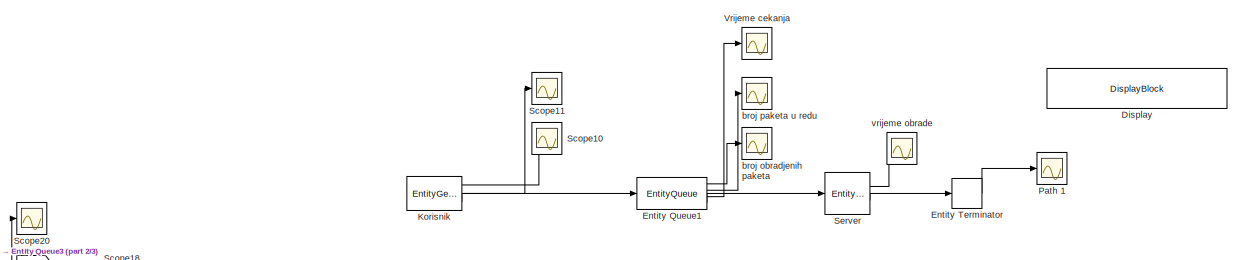
[diagram: root canvas - part 1/3, top center region]
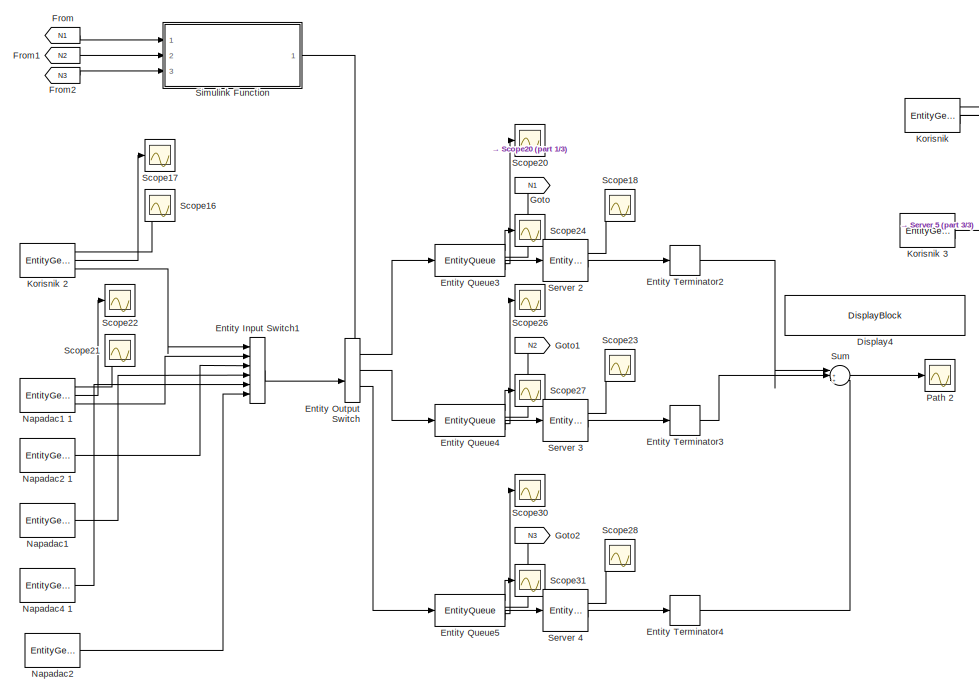
[diagram: root canvas - part 2/3, middle left region]
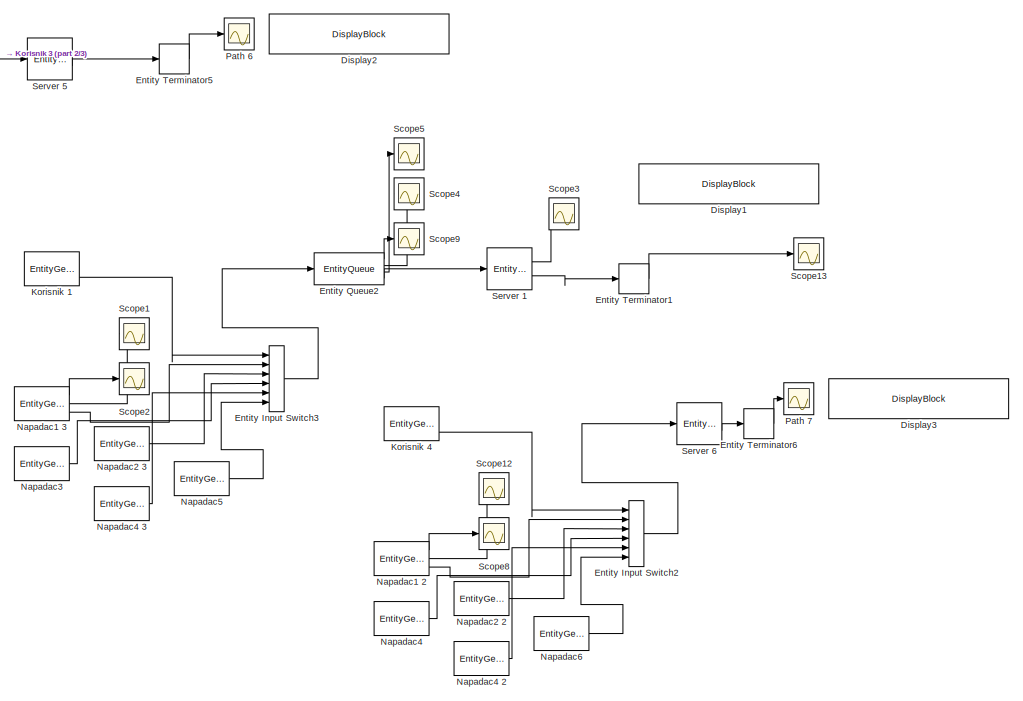
[diagram: root canvas - part 3/3, middle right region]
MODEL slx_8ecd86adb129
KIND model
CONFIG AbsTol = auto
CONFIG EnableMultiTasking = off
CONFIG FixedStep = auto
CONFIG InitFcn = global brojac_normalnih brojac_napadaca;\nbrojac_normalnih = 0;\nbrojac_napadaca = 0;\n
CONFIG MaxStep = auto
CONFIG MinStep = auto
CONFIG RelTol = 1e-3
CONFIG SampleTimeConstraint = Unconstrained
CONFIG Solver = VariableStepAuto
CONFIG SolverName = VariableStepAuto
CONFIG StartFcn = global brojac_normalnih brojac_napadaca;\nbrojac_normalnih = 0;\nbrojac_napadaca = 0;\n
CONFIG StartTime = 0.0
CONFIG StopTime = 100
BLOCK [DisplayBlock] Display
  LabelPosition = Hide
  WebBlockId = 144
BLOCK [DisplayBlock] Display1
  LabelPosition = Hide
  WebBlockId = 257
BLOCK [DisplayBlock] Display2
  LabelPosition = Hide
  WebBlockId = 149
BLOCK [DisplayBlock] Display3
  LabelPosition = Hide
  WebBlockId = 165
BLOCK [DisplayBlock] Display4
  LabelPosition = Hide
  WebBlockId = 260
BLOCK [EntityInputSwitch] Entity Input Switch1
  InputPortMap = u1,u2,u3,u4,u5,u6
  InputPortMessageModes = m,m,m,m,m,m
  NumberInputPorts = 6
  OutputPortMap = o0
  OutputPortMessageModes = m
  Ports = [6, 1]
BLOCK [EntityInputSwitch] Entity Input Switch2
  InputPortMap = u1,u2,u3,u4,u5,u6
  InputPortMessageModes = m,m,m,m,m,m
  NumberInputPorts = 6
  OutputPortMap = o0
  OutputPortMessageModes = m
  Ports = [6, 1]
BLOCK [EntityInputSwitch] Entity Input Switch3
  InputPortMap = u1,u2,u3,u4,u5,u6
  InputPortMessageModes = m,m,m,m,m,m
  NumberInputPorts = 6
  OutputPortMap = o0
  OutputPortMessageModes = m
  Ports = [6, 1]
BLOCK [EntityOutputSwitch] Entity Output Switch
  InputPortMap = u0,u1
  InputPortMessageModes = m,m
  NumberOutputPorts = 3
  OutputPortMap = o0,o1,o2
  OutputPortMessageModes = m,m,m
  Ports = [2, 3]
  SwitchAttributeName = Attribute1
  SwitchingCriterion = From control port
BLOCK [EntityQueue] Entity Queue1
  AverageWait = on
  Capacity = 100
  InputPortMap = u0
  InputPortMessageModes = m
  NumberEntitiesDeparted = on
  NumberEntitiesInBlock = on
  OutputPortMap = o0,o1,o2,o5
  OutputPortMessageModes = n,n,n,m
  Ports = [1, 4]
BLOCK [EntityQueue] Entity Queue2
  AverageWait = on
  Capacity = 500
  InputPortMap = u0
  InputPortMessageModes = m
  NumberEntitiesDeparted = on
  NumberEntitiesInBlock = on
  OutputPortMap = o0,o1,o2,o5
  OutputPortMessageModes = n,n,n,m
  Ports = [1, 4]
BLOCK [EntityQueue] Entity Queue3
  AverageWait = on
  Capacity = 500
  InputPortMap = u0
  InputPortMessageModes = m
  NumberEntitiesDeparted = on
  NumberEntitiesInBlock = on
  OutputPortMap = o0,o1,o2,o5
  OutputPortMessageModes = n,n,n,m
  Ports = [1, 4]
BLOCK [EntityQueue] Entity Queue4
  AverageWait = on
  Capacity = 500
  InputPortMap = u0
  InputPortMessageModes = m
  NumberEntitiesDeparted = on
  NumberEntitiesInBlock = on
  OutputPortMap = o0,o1,o2,o5
  OutputPortMessageModes = n,n,n,m
  Ports = [1, 4]
BLOCK [EntityQueue] Entity Queue5
  AverageWait = on
  Capacity = 500
  InputPortMap = u0
  InputPortMessageModes = m
  NumberEntitiesDeparted = on
  NumberEntitiesInBlock = on
  OutputPortMap = o0,o1,o2,o5
  OutputPortMessageModes = n,n,n,m
  Ports = [1, 4]
BLOCK [EntityTerminator] Entity Terminator
  InputPortMap = u0
  InputPortMessageModes = m
  NumberEntitiesArrived = on
  OutputPortMap = o0
  Ports = [1, 1]
BLOCK [EntityTerminator] Entity Terminator1
  InputPortMap = u0
  InputPortMessageModes = m
  NumberEntitiesArrived = on
  OutputPortMap = o0
  Ports = [1, 1]
BLOCK [EntityTerminator] Entity Terminator2
  InputPortMap = u0
  InputPortMessageModes = m
  NumberEntitiesArrived = on
  OutputPortMap = o0
  Ports = [1, 1]
BLOCK [EntityTerminator] Entity Terminator3
  InputPortMap = u0
  InputPortMessageModes = m
  NumberEntitiesArrived = on
  OutputPortMap = o0
  Ports = [1, 1]
BLOCK [EntityTerminator] Entity Terminator4
  InputPortMap = u0
  InputPortMessageModes = m
  NumberEntitiesArrived = on
  OutputPortMap = o0
  Ports = [1, 1]
BLOCK [EntityTerminator] Entity Terminator5
  InputPortMap = u0
  InputPortMessageModes = m
  NumberEntitiesArrived = on
  OutputPortMap = o0
  Ports = [1, 1]
BLOCK [EntityTerminator] Entity Terminator6
  InputPortMap = u0
  InputPortMessageModes = m
  NumberEntitiesArrived = on
  OutputPortMap = o0
  Ports = [1, 1]
BLOCK [From] From
  GotoTag = N1
BLOCK [From] From1
  GotoTag = N2
BLOCK [From] From2
  GotoTag = N3
BLOCK [Goto] Goto
  GotoTag = N1
BLOCK [Goto] Goto1
  GotoTag = N2
BLOCK [Goto] Goto2
  GotoTag = N3
BLOCK [EntityGenerator] Korisnik 
  AttributeInitialValue = 0
  AttributeName = vrijeme
  AverageIntergenerationTime = on
  DataInitialValue = 1
  EntityType = Structured
  EntityTypeName = vrijeme
  GenerateAction = persistent rngInit;\nif isempty(rngInit)\n    seed = 12345;\n    rng(seed);\n    rngInit = true;\nend\n\n% Pattern: Uniform distribution\n% m: Minimum, M: Maximum\nm = 0.1, M = 0.5;\nentity.vrijeme = m + (M - m) * rand;  <repeated x3 — deduplicated; at blocks: Korisnik, Korisnik 1, Korisnik 3>
  IntergenerationTimeAction = persistent rngInit;\nif isempty(rngInit)\n    seed = 12345;\n    rng(seed);\n    rngInit = true;\nend\n\n% Pattern: Uniform distribution\n% m: Minimum, M: Maximum\nm = 0.1, M = 1;\ndt = m + (M - m) * rand;  <repeated x3 — deduplicated; at blocks: Korisnik, Korisnik 1, Korisnik 3>
  NumberEntitiesDeparted = on
  OutputPortMap = o0,o2,o3
  OutputPortMessageModes = n,n,m
  Ports = [0, 3]
  TimeSource = MATLAB action
BLOCK [EntityGenerator] Korisnik 1
  AttributeInitialValue = 0
  AttributeName = vrijeme
  AverageIntergenerationTime = on
  DataInitialValue = 1
  EntityType = Structured
  EntityTypeName = vrijeme
  NumberEntitiesDeparted = on
  OutputPortMap = o0,o2,o3
  OutputPortMessageModes = n,n,m
  Ports = [0, 3]
  TimeSource = MATLAB action
BLOCK [EntityGenerator] Korisnik 2
  AttributeInitialValue = 0
  AttributeName = vrijeme
  AverageIntergenerationTime = on
  DataInitialValue = 1
  EntityType = Structured
  EntityTypeName = vrijeme
  GenerateAction = persistent rngInit;\nif isempty(rngInit)\n    seed = 12345;\n    rng(seed);\n    rngInit = true;\nend\ncomputeRouting();\n% Pattern: Uniform distribution\n% m: Minimum, M: Maximum\nm = 0.1, M = 0.5;\nentity.vrijeme = m + (M - m) * rand;
  IntergenerationTimeAction = persistent rngInit;\nif isempty(rngInit)\n    seed = 12345;\n    rng(seed);\n    rngInit = true;\nend\n\n% Pattern: Uniform distribution\n% m: Minimum, M: Maximum\nm = 0.1, M = 2;\ndt = m + (M - m) * rand;
  NumberEntitiesDeparted = on
  OutputPortMap = o0,o2,o3
  OutputPortMessageModes = n,n,m
  Ports = [0, 3]
  TimeSource = MATLAB action
BLOCK [EntityGenerator] Korisnik 3
  AttributeInitialValue = 0
  AttributeName = vrijeme
  AverageIntergenerationTime = on
  DataInitialValue = 1
  EntityType = Structured
  EntityTypeName = vrijeme
  NumberEntitiesDeparted = on
  OutputPortMap = o0,o2,o3
  OutputPortMessageModes = n,n,m
  Ports = [0, 3]
  TimeSource = MATLAB action
BLOCK [EntityGenerator] Korisnik 4
  AttributeInitialValue = 0
  AttributeName = vrijeme
  AverageIntergenerationTime = on
  DataInitialValue = 1
  EntityType = Structured
  EntityTypeName = vrijeme
  GenerateAction = persistent rngInit;\nif isempty(rngInit)\n    seed = 12345;\n    rng(seed);\n    rngInit = true;\nend\n\n% Pattern: Uniform distribution\n% m: Minimum, M: Maximum\nm = 0.1, M = 1;\nentity.vrijeme = m + (M - m) * rand;
  IntergenerationTimeAction = persistent rngInit;\nif isempty(rngInit)\n    seed = 12345;\n    rng(seed);\n    rngInit = true;\nend\n\n% Pattern: Uniform distribution\n% m: Minimum, M: Maximum\nm = 0.1, M = 2;\ndt = m + (M - m) * rand;
  NumberEntitiesDeparted = on
  OutputPortMap = o0,o2,o3
  OutputPortMessageModes = n,n,m
  Ports = [0, 3]
  TimeSource = MATLAB action
BLOCK [EntityGenerator] Napadac1
  AttributeInitialValue = 0
  AttributeName = vrijeme
  DataInitialValue = 1
  EntityType = Structured
  EntityTypeName = vrijeme
  GenerateAction = computeRouting();\npersistent rngInit;\nif isempty(rngInit)\n    seed = 12345;\n    rng(seed);\n    rngInit = true;\nend\n\n% Pattern: Uniform distribution\n% m: Minimum, M: Maximum\nm = 0.005, M = 0.02;\nentity.vrijeme = m + (M - m) * rand;  <repeated x4 — deduplicated; at blocks: Napadac1, Napadac2, Napadac2 1, Napadac4 1>
  IntergenerationTimeAction = persistent rngInit;\nif isempty(rngInit)\n    seed = 12345;\n    rng(seed);\n    rngInit = true;\nend\n\n% Pattern: Uniform distribution\n% m: Minimum, M: Maximum\nm = 0.005, M = 0.02;\ndt = m + (M - m) * rand;  <repeated x15 — deduplicated; at blocks: Napadac1, Napadac1 1, Napadac1 2, Napadac1 3, Napadac2, Napadac2 1, Napadac2 2, Napadac2 3, Napadac3, Napadac4, Napadac4 1, Napadac4 2, Napadac4 3, Napadac5, Napadac6>
  OutputPortMap = o3
  OutputPortMessageModes = m
  Ports = [0, 1]
  TimeSource = MATLAB action
BLOCK [EntityGenerator] Napadac1 1
  AttributeInitialValue = 0
  AttributeName = vrijeme
  AverageIntergenerationTime = on
  DataInitialValue = 1
  EntityType = Structured
  EntityTypeName = vrijeme
  GenerateAction = persistent rngInit;\nif isempty(rngInit)\n    seed = 12345;\n    rng(seed);\n    rngInit = true;\nend\ncomputeRouting();\n% Pattern: Uniform distribution\n% m: Minimum, M: Maximum\nm = 0.005, M = 0.02;\nentity.vrijeme = m + (M - m) * rand;
  NumberEntitiesDeparted = on
  OutputPortMap = o0,o2,o3
  OutputPortMessageModes = n,n,m
  Ports = [0, 3]
  TimeSource = MATLAB action
BLOCK [EntityGenerator] Napadac1 2
  AttributeInitialValue = 0
  AttributeName = vrijeme
  AverageIntergenerationTime = on
  DataInitialValue = 1
  EntityType = Structured
  EntityTypeName = vrijeme
  GenerateAction = persistent rngInit;\nif isempty(rngInit)\n    seed = 12345;\n    rng(seed);\n    rngInit = true;\nend\n\n% Pattern: Uniform distribution\n% m: Minimum, M: Maximum\nm = 0.005, M = 0.02;\nentity.vrijeme = m + (M - m) * rand;  <repeated x10 — deduplicated; at blocks: Napadac1 2, Napadac1 3, Napadac2 2, Napadac2 3, Napadac3, Napadac4, Napadac4 2, Napadac4 3, Napadac5, Napadac6>
  NumberEntitiesDeparted = on
  OutputPortMap = o0,o2,o3
  OutputPortMessageModes = n,n,m
  Ports = [0, 3]
  TimeSource = MATLAB action
BLOCK [EntityGenerator] Napadac1 3
  AttributeInitialValue = 0
  AttributeName = vrijeme
  AverageIntergenerationTime = on
  DataInitialValue = 1
  EntityType = Structured
  EntityTypeName = vrijeme
  NumberEntitiesDeparted = on
  OutputPortMap = o0,o2,o3
  OutputPortMessageModes = n,n,m
  Ports = [0, 3]
  TimeSource = MATLAB action
BLOCK [EntityGenerator] Napadac2
  AttributeInitialValue = 0
  AttributeName = vrijeme
  DataInitialValue = 1
  EntityType = Structured
  EntityTypeName = vrijeme
  OutputPortMap = o3
  OutputPortMessageModes = m
  Ports = [0, 1]
  TimeSource = MATLAB action
BLOCK [EntityGenerator] Napadac2 1
  AttributeInitialValue = 0
  AttributeName = vrijeme
  DataInitialValue = 1
  EntityType = Structured
  EntityTypeName = vrijeme
  OutputPortMap = o3
  OutputPortMessageModes = m
  Ports = [0, 1]
  TimeSource = MATLAB action
BLOCK [EntityGenerator] Napadac2 2
  AttributeInitialValue = 0
  AttributeName = vrijeme
  DataInitialValue = 1
  EntityType = Structured
  EntityTypeName = vrijeme
  OutputPortMap = o3
  OutputPortMessageModes = m
  Ports = [0, 1]
  TimeSource = MATLAB action
BLOCK [EntityGenerator] Napadac2 3
  AttributeInitialValue = 0
  AttributeName = vrijeme
  DataInitialValue = 1
  EntityType = Structured
  EntityTypeName = vrijeme
  OutputPortMap = o3
  OutputPortMessageModes = m
  Ports = [0, 1]
  TimeSource = MATLAB action
BLOCK [EntityGenerator] Napadac3
  AttributeInitialValue = 0
  AttributeName = vrijeme
  DataInitialValue = 1
  EntityType = Structured
  EntityTypeName = vrijeme
  OutputPortMap = o3
  OutputPortMessageModes = m
  Ports = [0, 1]
  TimeSource = MATLAB action
BLOCK [EntityGenerator] Napadac4
  AttributeInitialValue = 0
  AttributeName = vrijeme
  DataInitialValue = 1
  EntityType = Structured
  EntityTypeName = vrijeme
  OutputPortMap = o3
  OutputPortMessageModes = m
  Ports = [0, 1]
  TimeSource = MATLAB action
BLOCK [EntityGenerator] Napadac4 1
  AttributeInitialValue = 0
  AttributeName = vrijeme
  DataInitialValue = 1
  EntityType = Structured
  EntityTypeName = vrijeme
  OutputPortMap = o3
  OutputPortMessageModes = m
  Ports = [0, 1]
  TimeSource = MATLAB action
BLOCK [EntityGenerator] Napadac4 2
  AttributeInitialValue = 0
  AttributeName = vrijeme
  DataInitialValue = 1
  EntityType = Structured
  EntityTypeName = vrijeme
  OutputPortMap = o3
  OutputPortMessageModes = m
  Ports = [0, 1]
  TimeSource = MATLAB action
BLOCK [EntityGenerator] Napadac4 3
  AttributeInitialValue = 0
  AttributeName = vrijeme
  DataInitialValue = 1
  EntityType = Structured
  EntityTypeName = vrijeme
  OutputPortMap = o3
  OutputPortMessageModes = m
  Ports = [0, 1]
  TimeSource = MATLAB action
BLOCK [EntityGenerator] Napadac5
  AttributeInitialValue = 0
  AttributeName = vrijeme
  DataInitialValue = 1
  EntityType = Structured
  EntityTypeName = vrijeme
  OutputPortMap = o3
  OutputPortMessageModes = m
  Ports = [0, 1]
  TimeSource = MATLAB action
BLOCK [EntityGenerator] Napadac6
  AttributeInitialValue = 0
  AttributeName = vrijeme
  DataInitialValue = 1
  EntityType = Structured
  EntityTypeName = vrijeme
  OutputPortMap = o3
  OutputPortMessageModes = m
  Ports = [0, 1]
  TimeSource = MATLAB action
BLOCK [Scope] Path 1
  Floating = off
  NumInputPorts = 1
  Ports = [1]
  ScopeSpecificationString = Simulink.scopes.TimeScopeBlockCfg('CurrentConfiguration', extmgr.ConfigurationSet(extmgr.Configuration('Core','General UI',true),extmgr.Configuration('Core','Source UI',true),extmgr.Configuration('Sources','WiredSimulink',true,'DataLoggingLimitDataPoints',true,'DataLoggingSaveFormat','Array','DataLoggingDecimation','1','DataLoggingDecimateData',true,'DataLoggingVariableName','ScopeData1'),extmgr.C...<+1640ch>
BLOCK [Scope] Path 2
  Floating = off
  NumInputPorts = 1
  Ports = [1]
  ScopeSpecificationString = Simulink.scopes.TimeScopeBlockCfg('CurrentConfiguration', extmgr.ConfigurationSet(extmgr.Configuration('Core','General UI',true),extmgr.Configuration('Core','Source UI',true),extmgr.Configuration('Sources','WiredSimulink',true,'DataLoggingLimitDataPoints',true,'DataLoggingSaveFormat','Array','DataLoggingDecimation','1','DataLoggingDecimateData',true,'DataLoggingVariableName','ScopeData1'),extmgr.C...<+1648ch>
BLOCK [Scope] Path 6
  Floating = off
  NumInputPorts = 1
  Ports = [1]
  ScopeSpecificationString = Simulink.scopes.TimeScopeBlockCfg('CurrentConfiguration', extmgr.ConfigurationSet(extmgr.Configuration('Core','General UI',true),extmgr.Configuration('Core','Source UI',true),extmgr.Configuration('Sources','WiredSimulink',true,'DataLoggingLimitDataPoints',true,'DataLoggingSaveFormat','Array','DataLoggingDecimation','1','DataLoggingDecimateData',true,'DataLoggingVariableName','ScopeData1'),extmgr.C...<+1682ch>
BLOCK [Scope] Path 7
  Floating = off
  NumInputPorts = 1
  Ports = [1]
  ScopeSpecificationString = Simulink.scopes.TimeScopeBlockCfg('CurrentConfiguration', extmgr.ConfigurationSet(extmgr.Configuration('Core','General UI',true),extmgr.Configuration('Core','Source UI',true),extmgr.Configuration('Sources','WiredSimulink',true,'DataLoggingLimitDataPoints',true,'DataLoggingSaveFormat','Array','DataLoggingDecimation','1','DataLoggingDecimateData',true,'DataLoggingVariableName','ScopeData4'),extmgr.C...<+1687ch>
BLOCK [Scope] Scope1
  Floating = off
  NumInputPorts = 1
  Ports = [1]
  ScopeSpecificationString = Simulink.scopes.TimeScopeBlockCfg('CurrentConfiguration', extmgr.ConfigurationSet(extmgr.Configuration('Core','General UI',true),extmgr.Configuration('Core','Source UI',true),extmgr.Configuration('Sources','WiredSimulink',true,'DataLoggingVariableName','ScopeData2'),extmgr.Configuration('Visuals','Time Domain',true,'SerializedDisplays',{struct('MinYLimReal','-0.02999','MaxYLimReal','0.26988','YLab...<+1529ch>
BLOCK [Scope] Scope10
  Floating = off
  NumInputPorts = 1
  Ports = [1]
  ScopeSpecificationString = Simulink.scopes.TimeScopeBlockCfg('CurrentConfiguration', extmgr.ConfigurationSet(extmgr.Configuration('Core','General UI',true),extmgr.Configuration('Core','Source UI',true),extmgr.Configuration('Sources','WiredSimulink',true,'DataLoggingVariableName','ScopeData6'),extmgr.Configuration('Visuals','Time Domain',true,'SerializedDisplays',{struct('MinYLimReal','-21.25','MaxYLimReal','201.25','YLabelR...<+1507ch>
BLOCK [Scope] Scope11
  Floating = off
  NumInputPorts = 1
  Ports = [1]
  ScopeSpecificationString = Simulink.scopes.TimeScopeBlockCfg('CurrentConfiguration', extmgr.ConfigurationSet(extmgr.Configuration('Core','General UI',true),extmgr.Configuration('Core','Source UI',true),extmgr.Configuration('Sources','WiredSimulink',true,'DataLoggingVariableName','ScopeData9'),extmgr.Configuration('Visuals','Time Domain',true,'SerializedDisplays',{struct('MinYLimReal','-0.08093','MaxYLimReal','0.72835','YLab...<+1529ch>
BLOCK [Scope] Scope12
  Floating = off
  NumInputPorts = 1
  Ports = [1]
  ScopeSpecificationString = Simulink.scopes.TimeScopeBlockCfg('CurrentConfiguration', extmgr.ConfigurationSet(extmgr.Configuration('Core','General UI',true),extmgr.Configuration('Core','Source UI',true),extmgr.Configuration('Sources','WiredSimulink',true,'DataLoggingVariableName','ScopeData2'),extmgr.Configuration('Visuals','Time Domain',true,'SerializedDisplays',{struct('MinYLimReal','-0.02999','MaxYLimReal','0.26988','YLab...<+1529ch>
BLOCK [Scope] Scope13
  Floating = off
  NumInputPorts = 1
  Ports = [1]
  ScopeSpecificationString = Simulink.scopes.TimeScopeBlockCfg('CurrentConfiguration', extmgr.ConfigurationSet(extmgr.Configuration('Core','General UI',true),extmgr.Configuration('Core','Source UI',true),extmgr.Configuration('Sources','WiredSimulink',true,'DataLoggingVariableName','ScopeData1'),extmgr.Configuration('Visuals','Time Domain',true,'SerializedDisplays',{struct('MinYLimReal','-3485.75','MaxYLimReal','31381.75','YLa...<+1556ch>
BLOCK [Scope] Scope16
  Floating = off
  NumInputPorts = 1
  Ports = [1]
  ScopeSpecificationString = Simulink.scopes.TimeScopeBlockCfg('CurrentConfiguration', extmgr.ConfigurationSet(extmgr.Configuration('Core','General UI',true),extmgr.Configuration('Core','Source UI',true),extmgr.Configuration('Sources','WiredSimulink',true,'DataLoggingVariableName','ScopeData18'),extmgr.Configuration('Visuals','Time Domain',true,'SerializedDisplays',{struct('MinYLimReal','-222.75','MaxYLimReal','2014.75','YLab...<+1517ch>
BLOCK [Scope] Scope17
  Floating = off
  NumInputPorts = 1
  Ports = [1]
  ScopeSpecificationString = Simulink.scopes.TimeScopeBlockCfg('CurrentConfiguration', extmgr.ConfigurationSet(extmgr.Configuration('Core','General UI',true),extmgr.Configuration('Core','Source UI',true),extmgr.Configuration('Sources','WiredSimulink',true,'DataLoggingVariableName','ScopeData19'),extmgr.Configuration('Visuals','Time Domain',true,'SerializedDisplays',{struct('MinYLimReal','-0.02999','MaxYLimReal','0.26988','YLa...<+1531ch>
BLOCK [Scope] Scope18
  Floating = off
  NumInputPorts = 1
  Ports = [1]
  ScopeSpecificationString = Simulink.scopes.TimeScopeBlockCfg('CurrentConfiguration', extmgr.ConfigurationSet(extmgr.Configuration('Core','General UI',true),extmgr.Configuration('Core','Source UI',true),extmgr.Configuration('Sources','WiredSimulink',true,'DataLoggingVariableName','ScopeData20'),extmgr.Configuration('Visuals','Time Domain',true,'SerializedDisplays',{struct('MinYLimReal','0.4375','MaxYLimReal','1.0625','YLabel...<+1519ch>
BLOCK [Scope] Scope2
  Floating = off
  NumInputPorts = 1
  Ports = [1]
  ScopeSpecificationString = Simulink.scopes.TimeScopeBlockCfg('CurrentConfiguration', extmgr.ConfigurationSet(extmgr.Configuration('Core','General UI',true),extmgr.Configuration('Core','Source UI',true),extmgr.Configuration('Sources','WiredSimulink',true,'DataLoggingVariableName','ScopeData3'),extmgr.Configuration('Visuals','Time Domain',true,'SerializedDisplays',{struct('MinYLimReal','-998.00000','MaxYLimReal','8992.00000',...<+1533ch>
BLOCK [Scope] Scope20
  Floating = off
  NumInputPorts = 1
  Ports = [1]
  ScopeSpecificationString = Simulink.scopes.TimeScopeBlockCfg('CurrentConfiguration', extmgr.ConfigurationSet(extmgr.Configuration('Core','General UI',true),extmgr.Configuration('Core','Source UI',true),extmgr.Configuration('Sources','WiredSimulink',true,'DataLoggingVariableName','ScopeData22'),extmgr.Configuration('Visuals','Time Domain',true,'SerializedDisplays',{struct('MinYLimReal','-5.03012','MaxYLimReal','45.27108','YL...<+1538ch>
BLOCK [Scope] Scope21
  Floating = off
  NumInputPorts = 1
  Ports = [1]
  ScopeSpecificationString = Simulink.scopes.TimeScopeBlockCfg('CurrentConfiguration', extmgr.ConfigurationSet(extmgr.Configuration('Core','General UI',true),extmgr.Configuration('Core','Source UI',true),extmgr.Configuration('Sources','WiredSimulink',true,'DataLoggingVariableName','ScopeData23'),extmgr.Configuration('Visuals','Time Domain',true,'SerializedDisplays',{struct('MinYLimReal','-998.00000','MaxYLimReal','8992.00000'...<+1534ch>
BLOCK [Scope] Scope22
  Floating = off
  NumInputPorts = 1
  Ports = [1]
  ScopeSpecificationString = Simulink.scopes.TimeScopeBlockCfg('CurrentConfiguration', extmgr.ConfigurationSet(extmgr.Configuration('Core','General UI',true),extmgr.Configuration('Core','Source UI',true),extmgr.Configuration('Sources','WiredSimulink',true,'DataLoggingVariableName','ScopeData24'),extmgr.Configuration('Visuals','Time Domain',true,'SerializedDisplays',{struct('MinYLimReal','-0.02999','MaxYLimReal','0.26988','YLa...<+1530ch>
BLOCK [Scope] Scope23
  Floating = off
  NumInputPorts = 1
  Ports = [1]
  ScopeSpecificationString = Simulink.scopes.TimeScopeBlockCfg('CurrentConfiguration', extmgr.ConfigurationSet(extmgr.Configuration('Core','General UI',true),extmgr.Configuration('Core','Source UI',true),extmgr.Configuration('Sources','WiredSimulink',true,'DataLoggingVariableName','ScopeData27'),extmgr.Configuration('Visuals','Time Domain',true,'SerializedDisplays',{struct('MinYLimReal','0.4375','MaxYLimReal','1.0625','YLabel...<+1519ch>
BLOCK [Scope] Scope24
  Floating = off
  NumInputPorts = 1
  Ports = [1]
  ScopeSpecificationString = Simulink.scopes.TimeScopeBlockCfg('CurrentConfiguration', extmgr.ConfigurationSet(extmgr.Configuration('Core','General UI',true),extmgr.Configuration('Core','Source UI',true),extmgr.Configuration('Sources','WiredSimulink',true,'DataLoggingVariableName','ScopeData26'),extmgr.Configuration('Visuals','Time Domain',true,'SerializedDisplays',{struct('MinYLimReal','-541.5','MaxYLimReal','4883.5','YLabel...<+1528ch>
BLOCK [Scope] Scope26
  Floating = off
  NumInputPorts = 1
  Ports = [1]
  ScopeSpecificationString = Simulink.scopes.TimeScopeBlockCfg('CurrentConfiguration', extmgr.ConfigurationSet(extmgr.Configuration('Core','General UI',true),extmgr.Configuration('Core','Source UI',true),extmgr.Configuration('Sources','WiredSimulink',true,'DataLoggingVariableName','ScopeData29'),extmgr.Configuration('Visuals','Time Domain',true,'SerializedDisplays',{struct('MinYLimReal','-5.03012','MaxYLimReal','45.27108','YL...<+1538ch>
BLOCK [Scope] Scope27
  Floating = off
  NumInputPorts = 1
  Ports = [1]
  ScopeSpecificationString = Simulink.scopes.TimeScopeBlockCfg('CurrentConfiguration', extmgr.ConfigurationSet(extmgr.Configuration('Core','General UI',true),extmgr.Configuration('Core','Source UI',true),extmgr.Configuration('Sources','WiredSimulink',true,'DataLoggingVariableName','ScopeData30'),extmgr.Configuration('Visuals','Time Domain',true,'SerializedDisplays',{struct('MinYLimReal','-1020.125','MaxYLimReal','9191.125','Y...<+1544ch>
BLOCK [Scope] Scope28
  Floating = off
  NumInputPorts = 1
  Ports = [1]
  ScopeSpecificationString = Simulink.scopes.TimeScopeBlockCfg('CurrentConfiguration', extmgr.ConfigurationSet(extmgr.Configuration('Core','General UI',true),extmgr.Configuration('Core','Source UI',true),extmgr.Configuration('Sources','WiredSimulink',true,'DataLoggingVariableName','ScopeData32'),extmgr.Configuration('Visuals','Time Domain',true,'SerializedDisplays',{struct('MinYLimReal','0.4375','MaxYLimReal','1.0625','YLabel...<+1519ch>
BLOCK [Scope] Scope3
  Floating = off
  NumInputPorts = 1
  Ports = [1]
  ScopeSpecificationString = Simulink.scopes.TimeScopeBlockCfg('CurrentConfiguration', extmgr.ConfigurationSet(extmgr.Configuration('Core','General UI',true),extmgr.Configuration('Core','Source UI',true),extmgr.Configuration('Sources','WiredSimulink',true,'DataLoggingVariableName','ScopeData4'),extmgr.Configuration('Visuals','Time Domain',true,'SerializedDisplays',{struct('MinYLimReal','0.4375','MaxYLimReal','1.0625','YLabelR...<+1518ch>
BLOCK [Scope] Scope30
  Floating = off
  NumInputPorts = 1
  Ports = [1]
  ScopeSpecificationString = Simulink.scopes.TimeScopeBlockCfg('CurrentConfiguration', extmgr.ConfigurationSet(extmgr.Configuration('Core','General UI',true),extmgr.Configuration('Core','Source UI',true),extmgr.Configuration('Sources','WiredSimulink',true,'DataLoggingVariableName','ScopeData34'),extmgr.Configuration('Visuals','Time Domain',true,'SerializedDisplays',{struct('MinYLimReal','-5.03012','MaxYLimReal','45.27108','YL...<+1538ch>
BLOCK [Scope] Scope31
  Floating = off
  NumInputPorts = 1
  Ports = [1]
  ScopeSpecificationString = Simulink.scopes.TimeScopeBlockCfg('CurrentConfiguration', extmgr.ConfigurationSet(extmgr.Configuration('Core','General UI',true),extmgr.Configuration('Core','Source UI',true),extmgr.Configuration('Sources','WiredSimulink',true,'DataLoggingVariableName','ScopeData35'),extmgr.Configuration('Visuals','Time Domain',true,'SerializedDisplays',{struct('MinYLimReal','-1020.125','MaxYLimReal','9191.125','Y...<+1544ch>
BLOCK [Scope] Scope4
  Floating = off
  NumInputPorts = 1
  Ports = [1]
  ScopeSpecificationString = Simulink.scopes.TimeScopeBlockCfg('CurrentConfiguration', extmgr.ConfigurationSet(extmgr.Configuration('Core','General UI',true),extmgr.Configuration('Core','Source UI',true),extmgr.Configuration('Sources','WiredSimulink',true,'DataLoggingVariableName','ScopeData5'),extmgr.Configuration('Visuals','Time Domain',true,'SerializedDisplays',{struct('MinYLimReal','-61.375','MaxYLimReal','562.375','YLabe...<+1531ch>
BLOCK [Scope] Scope5
  Floating = off
  NumInputPorts = 1
  Ports = [1]
  ScopeSpecificationString = Simulink.scopes.TimeScopeBlockCfg('CurrentConfiguration', extmgr.ConfigurationSet(extmgr.Configuration('Core','General UI',true),extmgr.Configuration('Core','Source UI',true),extmgr.Configuration('Sources','WiredSimulink',true,'DataLoggingVariableName','ScopeData7'),extmgr.Configuration('Visuals','Time Domain',true,'SerializedDisplays',{struct('MinYLimReal','-0.21564','MaxYLimReal','1.94078','YLab...<+1533ch>
BLOCK [Scope] Scope8
  Floating = off
  NumInputPorts = 1
  Ports = [1]
  ScopeSpecificationString = Simulink.scopes.TimeScopeBlockCfg('CurrentConfiguration', extmgr.ConfigurationSet(extmgr.Configuration('Core','General UI',true),extmgr.Configuration('Core','Source UI',true),extmgr.Configuration('Sources','WiredSimulink',true,'DataLoggingVariableName','ScopeData3'),extmgr.Configuration('Visuals','Time Domain',true,'SerializedDisplays',{struct('MinYLimReal','-998.00000','MaxYLimReal','8992.00000',...<+1533ch>
BLOCK [Scope] Scope9
  Floating = off
  NumInputPorts = 1
  Ports = [1]
  ScopeSpecificationString = Simulink.scopes.TimeScopeBlockCfg('CurrentConfiguration', extmgr.ConfigurationSet(extmgr.Configuration('Core','General UI',true),extmgr.Configuration('Core','Source UI',true),extmgr.Configuration('Sources','WiredSimulink',true,'DataLoggingVariableName','ScopeData15'),extmgr.Configuration('Visuals','Time Domain',true,'SerializedDisplays',{struct('MinYLimReal','-1020.125','MaxYLimReal','9191.125','Y...<+1544ch>
BLOCK [EntityServer] Server 
  Capacity = 2
  InputPortMap = u2
  InputPortMessageModes = m
  OutputPortMap = o5,o9
  OutputPortMessageModes = n,m
  Ports = [1, 2]
  ServiceTimeAttributeName = vrijeme
  ServiceTimeSource = Attribute
  Utilization = on
BLOCK [EntityServer] Server 1
  Capacity = 4
  InputPortMap = u2
  InputPortMessageModes = m
  OutputPortMap = o5,o9
  OutputPortMessageModes = n,m
  Ports = [1, 2]
  ServiceTimeAttributeName = vrijeme
  ServiceTimeSource = Attribute
  Utilization = on
BLOCK [EntityServer] Server 2
  Capacity = 4
  InputPortMap = u2
  InputPortMessageModes = m
  OutputPortMap = o5,o9
  OutputPortMessageModes = n,m
  Ports = [1, 2]
  ServiceTimeAttributeName = vrijeme
  ServiceTimeSource = Attribute
  Utilization = on
BLOCK [EntityServer] Server 3
  Capacity = 4
  InputPortMap = u2
  InputPortMessageModes = m
  OutputPortMap = o5,o9
  OutputPortMessageModes = n,m
  Ports = [1, 2]
  ServiceTimeAttributeName = vrijeme
  ServiceTimeSource = Attribute
  Utilization = on
BLOCK [EntityServer] Server 4
  Capacity = 4
  InputPortMap = u2
  InputPortMessageModes = m
  OutputPortMap = o5,o9
  OutputPortMessageModes = n,m
  Ports = [1, 2]
  ServiceTimeAttributeName = vrijeme
  ServiceTimeSource = Attribute
  Utilization = on
BLOCK [EntityServer] Server 5
  Capacity = inf
  InputPortMap = u2
  InputPortMessageModes = m
  OutputPortMap = o5,o9
  OutputPortMessageModes = n,m
  Ports = [1, 2]
  ServiceTimeAttributeName = vrijeme
  ServiceTimeSource = Attribute
  Utilization = on
BLOCK [EntityServer] Server 6
  Capacity = inf
  InputPortMap = u2
  InputPortMessageModes = m
  OutputPortMap = o5,o9
  OutputPortMessageModes = n,m
  Ports = [1, 2]
  ServiceTimeAttributeName = vrijeme
  ServiceTimeSource = Attribute
  Utilization = on
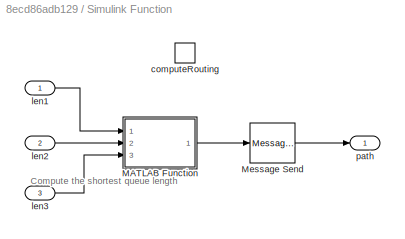
BLOCK [SubSystem] Simulink Function
  Ports = [3, 1, 0, 1]
  RequestExecContextInheritance = off
  TreatAsAtomicUnit = on
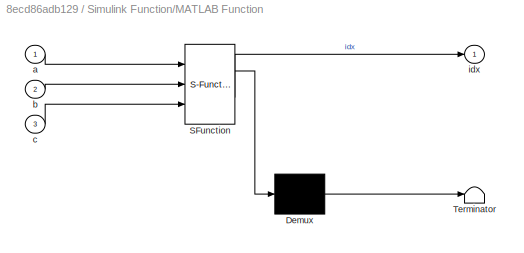
BLOCK [SubSystem] Simulink Function/MATLAB Function
  ErrorFcn = Stateflow.Translate.translate
  PermitHierarchicalResolution = ExplicitOnly
  Ports = [3, 1]
  RequestExecContextInheritance = off
  SFBlockType = MATLAB Function
  TreatAsAtomicUnit = on
BLOCK [Demux] Simulink Function/MATLAB Function/ Demux 
  Outputs = 1
  Ports = [1, 1]
BLOCK [S-Function] Simulink Function/MATLAB Function/ SFunction 
  EnableBusSupport = on
  FunctionName = sf_sfun
  PortCounts = [3 2]
  Ports = [3, 2]
  SFcnIsStateOwnerBlock = off
  SFunctionDeploymentMode = off
  Tag = Stateflow S-Function DDOSnapad 2
BLOCK [Terminator] Simulink Function/MATLAB Function/ Terminator 
BLOCK [Inport] Simulink Function/MATLAB Function/a
  IconDisplay = Port number
BLOCK [Inport] Simulink Function/MATLAB Function/b
  IconDisplay = Port number
  Port = 2
BLOCK [Inport] Simulink Function/MATLAB Function/c
  IconDisplay = Port number
  Port = 3
BLOCK [Outport] Simulink Function/MATLAB Function/idx
  IconDisplay = Port number
BLOCK [MessageSend] Simulink Function/Message Send
  InputPortMap = u1
  OutputPortMessageModes = m
  Ports = [1, 1]
BLOCK [TriggerPort] Simulink Function/computeRouting
  FunctionName = computeRouting
  IsSimulinkFunction = on
  Ports = []
  StatesWhenEnabling = held
  TriggerType = function-call
  VariantControl = Variant
BLOCK [Inport] Simulink Function/len1
  IconDisplay = Port number
BLOCK [Inport] Simulink Function/len2
  IconDisplay = Port number
  Port = 2
BLOCK [Inport] Simulink Function/len3
  IconDisplay = Port number
  Port = 3
BLOCK [Outport] Simulink Function/path
  IconDisplay = Port number
BLOCK [Sum] Sum
  IconShape = round
  InputSameDT = off
  Inputs = |+++
  OutDataTypeStr = Inherit: Inherit via internal rule
  Ports = [3, 1]
  SaturateOnIntegerOverflow = off
BLOCK [Scope] Vrijeme cekanja
  Floating = off
  NumInputPorts = 1
  Ports = [1]
  ScopeSpecificationString = Simulink.scopes.TimeScopeBlockCfg('CurrentConfiguration', extmgr.ConfigurationSet(extmgr.Configuration('Core','General UI',true),extmgr.Configuration('Core','Source UI',true),extmgr.Configuration('Sources','WiredSimulink',true,'DataLoggingVariableName','ScopeData12'),extmgr.Configuration('Visuals','Time Domain',true,'SerializedDisplays',{struct('MinYLimReal','-1.93825','MaxYLimReal','17.44423','YL...<+1538ch>
BLOCK [Scope] broj obradjenih paketa
  Floating = off
  NumInputPorts = 1
  Ports = [1]
  ScopeSpecificationString = Simulink.scopes.TimeScopeBlockCfg('CurrentConfiguration', extmgr.ConfigurationSet(extmgr.Configuration('Core','General UI',true),extmgr.Configuration('Core','Source UI',true),extmgr.Configuration('Sources','WiredSimulink',true,'DataLoggingVariableName','ScopeData16'),extmgr.Configuration('Visuals','Time Domain',true,'SerializedDisplays',{struct('MinYLimReal','-82.875','MaxYLimReal','755.875','YLab...<+1532ch>
BLOCK [Scope] broj paketa u redu 
  Floating = off
  NumInputPorts = 1
  Ports = [1]
  ScopeSpecificationString = Simulink.scopes.TimeScopeBlockCfg('CurrentConfiguration', extmgr.ConfigurationSet(extmgr.Configuration('Core','General UI',true),extmgr.Configuration('Core','Source UI',true),extmgr.Configuration('Sources','WiredSimulink',true,'DataLoggingVariableName','ScopeData11'),extmgr.Configuration('Visuals','Time Domain',true,'SerializedDisplays',{struct('MinYLimReal','-70.00000','MaxYLimReal','630.00000','...<+1544ch>
BLOCK [Scope] vrijeme obrade 
  Floating = off
  NumInputPorts = 1
  Ports = [1]
  ScopeSpecificationString = Simulink.scopes.TimeScopeBlockCfg('CurrentConfiguration', extmgr.ConfigurationSet(extmgr.Configuration('Core','General UI',true),extmgr.Configuration('Core','Source UI',true),extmgr.Configuration('Sources','WiredSimulink',true,'DataLoggingVariableName','ScopeData10'),extmgr.Configuration('Visuals','Time Domain',true,'SerializedDisplays',{struct('MinYLimReal','0.43753','MaxYLimReal','1.06224','YLab...<+1526ch>
ANNOTATION Simulink Function: Compute the shortest queue length
LINE Entity Input Switch1:1 -> Entity Output Switch:2
LINE Entity Input Switch2:1 -> Server 6:1
LINE Entity Input Switch3:1 -> Entity Queue2:1
LINE Entity Output Switch:1 -> Entity Queue3:1
LINE Entity Output Switch:2 -> Entity Queue4:1
LINE Entity Output Switch:3 -> Entity Queue5:1
LINE Entity Queue1:1 -> broj obradjenih paketa:1
LINE Entity Queue1:2 -> broj paketa u redu :1
LINE Entity Queue1:3 -> Vrijeme cekanja:1
LINE Entity Queue1:4 -> Server :1
LINE Entity Queue2:1 -> Scope9:1
LINE Entity Queue2:2 -> Scope4:1
LINE Entity Queue2:3 -> Scope5:1
LINE Entity Queue2:4 -> Server 1:1
LINE Entity Queue3:1 -> Scope24:1
LINE Entity Queue3:2 -> Goto:1
LINE Entity Queue3:3 -> Scope20:1
LINE Entity Queue3:4 -> Server 2:1
LINE Entity Queue4:1 -> Scope27:1
LINE Entity Queue4:2 -> Goto1:1
LINE Entity Queue4:3 -> Scope26:1
LINE Entity Queue4:4 -> Server 3:1
LINE Entity Queue5:1 -> Scope31:1
LINE Entity Queue5:2 -> Goto2:1
LINE Entity Queue5:3 -> Scope30:1
LINE Entity Queue5:4 -> Server 4:1
LINE Entity Terminator1:1 -> Scope13:1
LINE Entity Terminator2:1 -> Sum:1
LINE Entity Terminator3:1 -> Sum:2
LINE Entity Terminator4:1 -> Sum:3
LINE Entity Terminator5:1 -> Path 6:1
LINE Entity Terminator6:1 -> Path 7:1
LINE Entity Terminator:1 -> Path 1:1
LINE From1:1 -> Simulink Function:2
LINE From2:1 -> Simulink Function:3
LINE From:1 -> Simulink Function:1
LINE Korisnik 1:3 -> Entity Input Switch3:1
LINE Korisnik 2:1 -> Scope16:1
LINE Korisnik 2:2 -> Scope17:1
LINE Korisnik 2:3 -> Entity Input Switch1:1
LINE Korisnik 3:3 -> Server 5:1
LINE Korisnik 4:3 -> Entity Input Switch2:1
LINE Korisnik :1 -> Scope10:1
LINE Korisnik :2 -> Scope11:1
LINE Korisnik :3 -> Entity Queue1:1
LINE Napadac1 1:1 -> Scope21:1
LINE Napadac1 1:2 -> Scope22:1
LINE Napadac1 1:3 -> Entity Input Switch1:2
LINE Napadac1 2:1 -> Scope8:1
LINE Napadac1 2:2 -> Scope12:1
LINE Napadac1 2:3 -> Entity Input Switch2:2
LINE Napadac1 3:1 -> Scope2:1
LINE Napadac1 3:2 -> Scope1:1
LINE Napadac1 3:3 -> Entity Input Switch3:2
LINE Napadac1:1 -> Entity Input Switch1:4
LINE Napadac2 1:1 -> Entity Input Switch1:3
LINE Napadac2 2:1 -> Entity Input Switch2:3
LINE Napadac2 3:1 -> Entity Input Switch3:3
LINE Napadac2:1 -> Entity Input Switch1:6
LINE Napadac3:1 -> Entity Input Switch3:4
LINE Napadac4 1:1 -> Entity Input Switch1:5
LINE Napadac4 2:1 -> Entity Input Switch2:5
LINE Napadac4 3:1 -> Entity Input Switch3:5
LINE Napadac4:1 -> Entity Input Switch2:4
LINE Napadac5:1 -> Entity Input Switch3:6
LINE Napadac6:1 -> Entity Input Switch2:6
LINE Server 1:1 -> Scope3:1
LINE Server 1:2 -> Entity Terminator1:1
LINE Server 2:1 -> Scope18:1
LINE Server 2:2 -> Entity Terminator2:1
LINE Server 3:1 -> Scope23:1
LINE Server 3:2 -> Entity Terminator3:1
LINE Server 4:1 -> Scope28:1
LINE Server 4:2 -> Entity Terminator4:1
LINE Server 5:2 -> Entity Terminator5:1
LINE Server 6:2 -> Entity Terminator6:1
LINE Server :1 -> vrijeme obrade :1
LINE Server :2 -> Entity Terminator:1
LINE Simulink Function/MATLAB Function:1 -> Simulink Function/Message Send:1
LINE Simulink Function/Message Send:1 -> Simulink Function/path:1
LINE Simulink Function/len1:1 -> Simulink Function/MATLAB Function:1
LINE Simulink Function/len2:1 -> Simulink Function/MATLAB Function:2
LINE Simulink Function/len3:1 -> Simulink Function/MATLAB Function:3
LINE Simulink Function:1 -> Entity Output Switch:1
LINE Sum:1 -> Path 2:1
CHART Simulink Function/MATLAB Function states=1 transitions=1
  STATE_LABEL 'eML_blk_kernel()'
  STATE_LABEL 'SCRIPT:\nfunction idx = fcn(a,b,c)\n\n[~, idx] = min([a,b,c]);'
